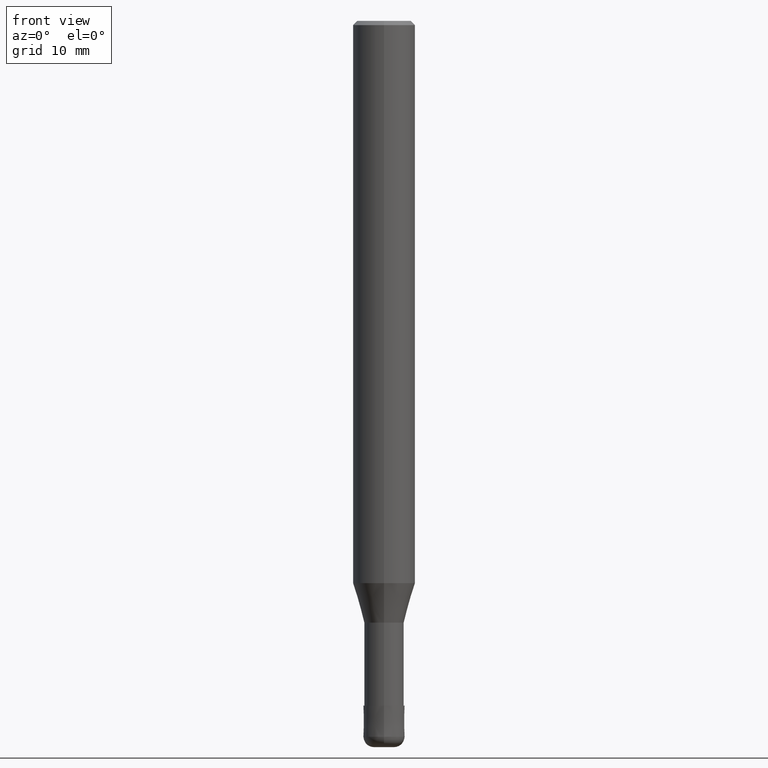
[diagram: clean part render]
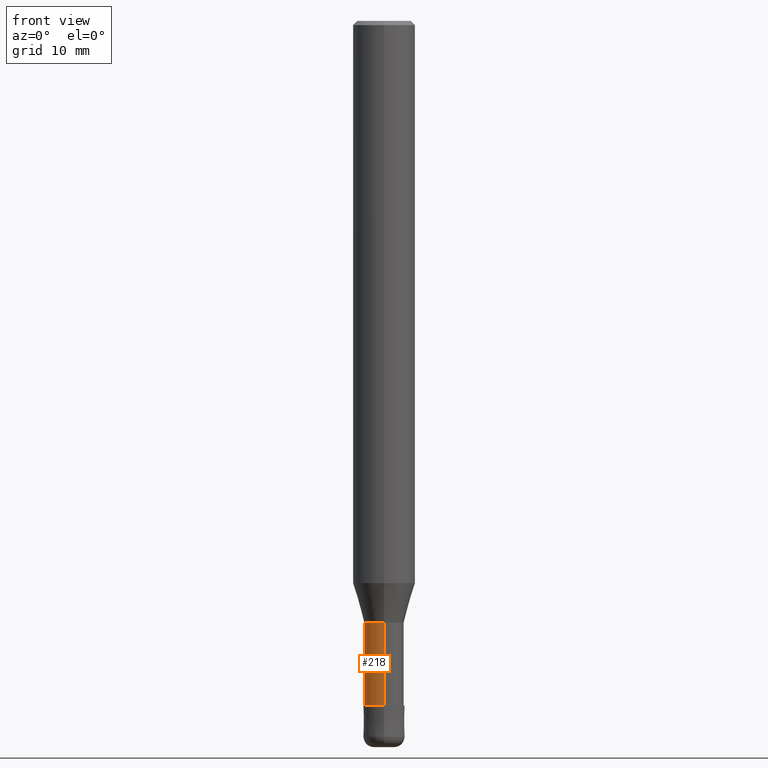
[diagram: same view with one face highlighted and labeled with its STEP entity id]
A machine part, front view. The second image highlights one B-rep face of the part: STEP entity #218.
In plain terms, the highlighted cylindrical surface (edge-blend (fillet) strip) has radius 1.91 mm, axis along (-0, -0, 1).
Its self-contained STEP definition (entity closure, byte-faithful):
#120=EDGE_CURVE('',#126,#212,#276,.T.);
#126=VERTEX_POINT('',#283);
#132=EDGE_CURVE('',#126,#182,#290,.T.);
#136=EDGE_CURVE('',#158,#212,#294,.T.);
#158=VERTEX_POINT('',#318);
#182=VERTEX_POINT('',#346);
#192=EDGE_CURVE('',#182,#158,#357,.T.);
#212=VERTEX_POINT('',#380);
#218=ADVANCED_FACE('',(#386),#387,.T.);
#276=CIRCLE('',#447,1.90995);
#283=CARTESIAN_POINT('',(2.33893690548305E-016,-1.90995,-66.0));
#290=LINE('',#464,#465);
#294=LINE('',#470,#471);
#318=CARTESIAN_POINT('',(0.0,1.90995,-58.0));
#346=CARTESIAN_POINT('',(2.33893690548305E-016,-1.90995,-58.0));
#357=CIRCLE('',#548,1.90995);
#380=CARTESIAN_POINT('',(0.0,1.90995,-66.0));
#386=FACE_OUTER_BOUND('',#582,.T.);
#387=CYLINDRICAL_SURFACE('',#583,1.90995);
#447=AXIS2_PLACEMENT_3D('',#644,#645,#646);
#464=CARTESIAN_POINT('',(2.33893690548305E-016,-1.90995,-62.0));
#465=VECTOR('',#667,1.0);
#470=CARTESIAN_POINT('',(-2.33893690548305E-016,1.90995,-62.0));
#471=VECTOR('',#668,1.0);
#548=AXIS2_PLACEMENT_3D('',#739,#740,#741);
#582=EDGE_LOOP('',(#781,#782,#783,#784));
#583=AXIS2_PLACEMENT_3D('',#785,#786,#787);
#644=CARTESIAN_POINT('',(0.0,0.0,-66.0));
#645=DIRECTION('',(0.0,0.0,-1.0));
#646=DIRECTION('',(0.0,1.0,0.0));
#667=DIRECTION('',(-0.0,-0.0,1.0));
#668=DIRECTION('',(0.0,0.0,-1.0));
#739=CARTESIAN_POINT('',(0.0,0.0,-58.0));
#740=DIRECTION('',(0.0,0.0,-1.0));
#741=DIRECTION('',(0.0,1.0,0.0));
#781=ORIENTED_EDGE('',*,*,#136,.T.);
#782=ORIENTED_EDGE('',*,*,#120,.F.);
#783=ORIENTED_EDGE('',*,*,#132,.T.);
#784=ORIENTED_EDGE('',*,*,#192,.T.);
#785=CARTESIAN_POINT('',(0.0,0.0,-62.0));
#786=DIRECTION('',(-0.0,-0.0,1.0));
#787=DIRECTION('',(0.0,1.0,0.0));